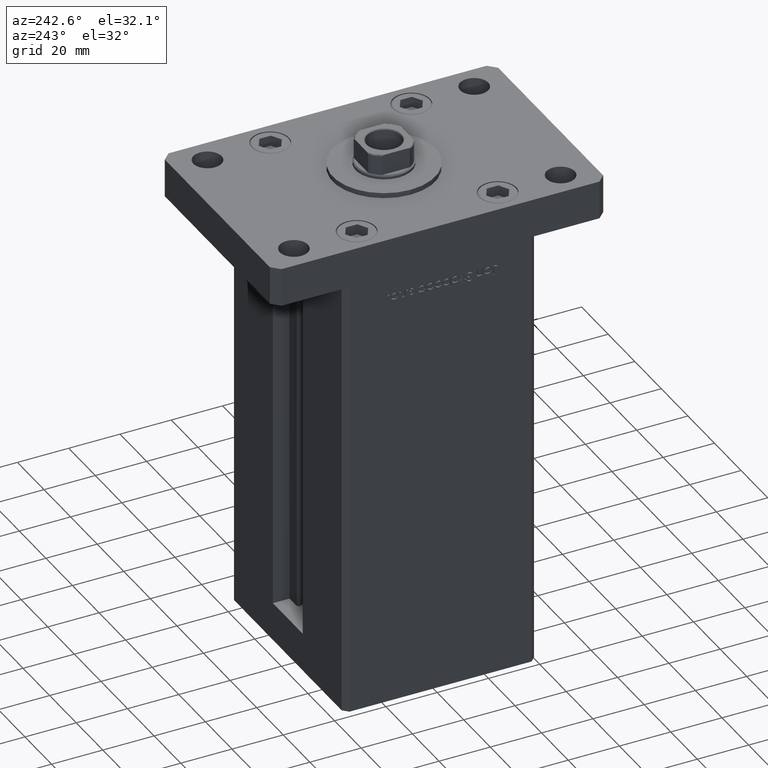
[diagram: clean part render]
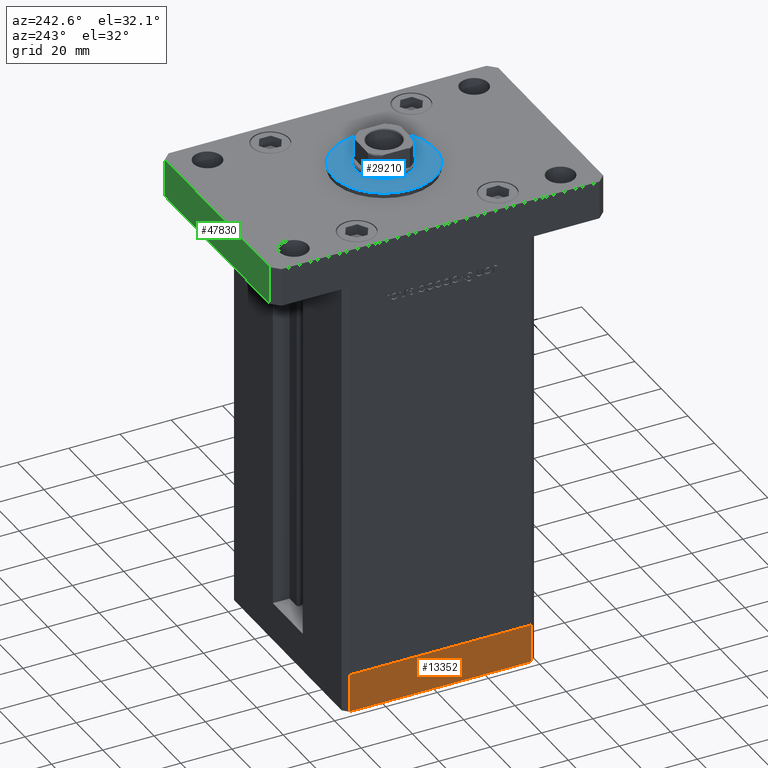
[diagram: same view with three faces highlighted in distinct colors, each labeled with its STEP entity id]
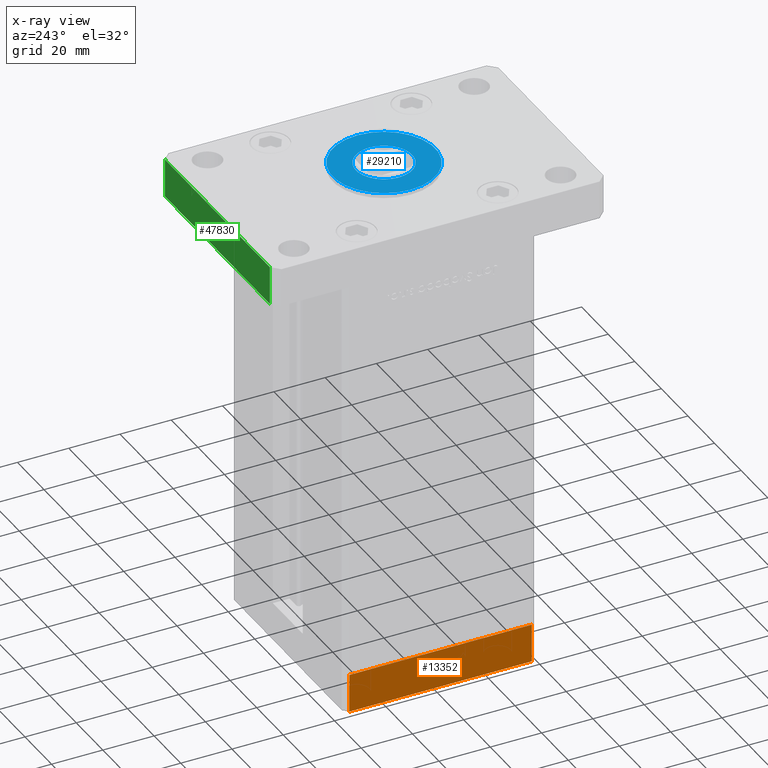
[diagram: x-ray of the same camera — body ghosted, the three highlighted faces saturated]
A machine part, auxiliary view with three faces highlighted in distinct colors.
The next image is the same camera in x-ray (body ghosted, the three faces saturated) — at least one of them is partly hidden behind the body in this view.
Their STEP definitions:

[orange] entity #13352 — the highlighted planar face has unit normal (-1, 0, 0).
#3212 = LINE ( 'NONE', #49063, #21973 ) ;
#3283 = ORIENTED_EDGE ( 'NONE', *, *, #46221, .T. ) ;
#4042 = VECTOR ( 'NONE', #24944, 1000.000000000000000 ) ;
#7184 = VECTOR ( 'NONE', #46546, 1000.000000000000000 ) ;
#8265 = EDGE_CURVE ( 'NONE', #48227, #43064, #31873, .T. ) ;
#8389 = CARTESIAN_POINT ( 'NONE',  ( 42.49999999999992895, 35.50000000000000000, -15.00000000000000000 ) ) ;
#10127 = FACE_OUTER_BOUND ( 'NONE', #30803, .T. ) ;
#13352 = ADVANCED_FACE ( 'NONE', ( #10127 ), #26676, .T. ) ;
#13427 = VERTEX_POINT ( 'NONE', #19889 ) ;
#14730 = DIRECTION ( 'NONE',  ( -1.172770800660376741E-15, 1.000000000000000000, 0.000000000000000000 ) ) ;
#15781 = VERTEX_POINT ( 'NONE', #17375 ) ;
#17375 = CARTESIAN_POINT ( 'NONE',  ( 42.49999999999992895, 35.50000000000000000, -15.00000000000000000 ) ) ;
#19889 = CARTESIAN_POINT ( 'NONE',  ( 42.49999999999992895, 35.50000000000000000, 0.000000000000000000 ) ) ;
#21241 = EDGE_CURVE ( 'NONE', #43064, #13427, #3212, .T. ) ;
#21973 = VECTOR ( 'NONE', #23569, 1000.000000000000000 ) ;
#23569 = DIRECTION ( 'NONE',  ( -1.172770800660376741E-15, 1.000000000000000000, 0.000000000000000000 ) ) ;
#24944 = DIRECTION ( 'NONE',  ( 0.000000000000000000, 0.000000000000000000, 1.000000000000000000 ) ) ;
#25049 = EDGE_CURVE ( 'NONE', #15781, #13427, #33352, .T. ) ;
#26676 = PLANE ( 'NONE',  #27915 ) ;
#26950 = DIRECTION ( 'NONE',  ( 1.000000000000000000, 1.172770800660376741E-15, -0.000000000000000000 ) ) ;
#27006 = LINE ( 'NONE', #34329, #7184 ) ;
#27915 = AXIS2_PLACEMENT_3D ( 'NONE', #31020, #26950, #14730 ) ;
#30767 = CARTESIAN_POINT ( 'NONE',  ( 42.50000000000000711, -35.50000000000000000, -15.00000000000000000 ) ) ;
#30803 = EDGE_LOOP ( 'NONE', ( #50216, #46509, #3283, #43823 ) ) ;
#31020 = CARTESIAN_POINT ( 'NONE',  ( 42.50000000000000711, -35.50000000000000000, -15.00000000000000000 ) ) ;
#31682 = CARTESIAN_POINT ( 'NONE',  ( 42.50000000000000711, -35.50000000000000000, 0.000000000000000000 ) ) ;
#31873 = LINE ( 'NONE', #35943, #52881 ) ;
#33352 = LINE ( 'NONE', #8389, #4042 ) ;
#34329 = CARTESIAN_POINT ( 'NONE',  ( 42.50000000000000711, -35.50000000000000000, -15.00000000000000000 ) ) ;
#35943 = CARTESIAN_POINT ( 'NONE',  ( 42.50000000000000711, -35.50000000000000000, -15.00000000000000000 ) ) ;
#43064 = VERTEX_POINT ( 'NONE', #31682 ) ;
#43823 = ORIENTED_EDGE ( 'NONE', *, *, #25049, .T. ) ;
#46221 = EDGE_CURVE ( 'NONE', #48227, #15781, #27006, .T. ) ;
#46509 = ORIENTED_EDGE ( 'NONE', *, *, #8265, .F. ) ;
#46546 = DIRECTION ( 'NONE',  ( -1.172770800660376741E-15, 1.000000000000000000, 0.000000000000000000 ) ) ;
#48227 = VERTEX_POINT ( 'NONE', #30767 ) ;
#49063 = CARTESIAN_POINT ( 'NONE',  ( 42.50000000000000711, -35.50000000000000000, 0.000000000000000000 ) ) ;
#50216 = ORIENTED_EDGE ( 'NONE', *, *, #21241, .F. ) ;
#52481 = DIRECTION ( 'NONE',  ( 0.000000000000000000, 0.000000000000000000, 1.000000000000000000 ) ) ;
#52881 = VECTOR ( 'NONE', #52481, 1000.000000000000000 ) ;

[blue] entity #29210 — the highlighted planar face has unit normal (0, 0, 1).
#1802 = DIRECTION ( 'NONE',  ( 0.000000000000000000, 0.000000000000000000, 1.000000000000000000 ) ) ;
#2295 = EDGE_LOOP ( 'NONE', ( #8809, #22034 ) ) ;
#4809 = FACE_BOUND ( 'NONE', #34746, .T. ) ;
#6035 = CIRCLE ( 'NONE', #14707, 20.00000000000000000 ) ;
#7291 = CARTESIAN_POINT ( 'NONE',  ( 0.000000000000000000, 0.000000000000000000, 17.00000000000000000 ) ) ;
#8809 = ORIENTED_EDGE ( 'NONE', *, *, #21207, .T. ) ;
#12688 = DIRECTION ( 'NONE',  ( 1.000000000000000000, 0.000000000000000000, -0.000000000000000000 ) ) ;
#13791 = DIRECTION ( 'NONE',  ( 1.000000000000000000, 0.000000000000000000, 0.000000000000000000 ) ) ;
#14707 = AXIS2_PLACEMENT_3D ( 'NONE', #43569, #1802, #26219 ) ;
#18267 = CARTESIAN_POINT ( 'NONE',  ( 11.00000000000000000, 0.000000000000000000, 17.00000000000000000 ) ) ;
#19181 = EDGE_CURVE ( 'NONE', #51137, #20488, #22908, .T. ) ;
#19403 = ORIENTED_EDGE ( 'NONE', *, *, #30174, .F. ) ;
#20488 = VERTEX_POINT ( 'NONE', #18267 ) ;
#21207 = EDGE_CURVE ( 'NONE', #27391, #51861, #37584, .T. ) ;
#22034 = ORIENTED_EDGE ( 'NONE', *, *, #38169, .T. ) ;
#22908 = CIRCLE ( 'NONE', #35872, 11.00000000000000000 ) ;
#23621 = CARTESIAN_POINT ( 'NONE',  ( -11.00000000000000000, 1.347111479062088405E-15, 17.00000000000000000 ) ) ;
#24956 = AXIS2_PLACEMENT_3D ( 'NONE', #50378, #49596, #12688 ) ;
#26219 = DIRECTION ( 'NONE',  ( 1.000000000000000000, 0.000000000000000000, 0.000000000000000000 ) ) ;
#27391 = VERTEX_POINT ( 'NONE', #47686 ) ;
#27626 = DIRECTION ( 'NONE',  ( 0.000000000000000000, 0.000000000000000000, 1.000000000000000000 ) ) ;
#29210 = ADVANCED_FACE ( 'NONE', ( #4809, #47314 ), #33833, .T. ) ;
#29227 = DIRECTION ( 'NONE',  ( 1.000000000000000000, 0.000000000000000000, 0.000000000000000000 ) ) ;
#30174 = EDGE_CURVE ( 'NONE', #20488, #51137, #38821, .T. ) ;
#33833 = PLANE ( 'NONE',  #24956 ) ;
#34411 = CARTESIAN_POINT ( 'NONE',  ( 0.000000000000000000, 0.000000000000000000, 17.00000000000000000 ) ) ;
#34466 = AXIS2_PLACEMENT_3D ( 'NONE', #41977, #50641, #29227 ) ;
#34746 = EDGE_LOOP ( 'NONE', ( #19403, #47738 ) ) ;
#35769 = DIRECTION ( 'NONE',  ( 1.000000000000000000, 0.000000000000000000, 0.000000000000000000 ) ) ;
#35872 = AXIS2_PLACEMENT_3D ( 'NONE', #34411, #50962, #13791 ) ;
#37584 = CIRCLE ( 'NONE', #38436, 20.00000000000000000 ) ;
#38169 = EDGE_CURVE ( 'NONE', #51861, #27391, #6035, .T. ) ;
#38436 = AXIS2_PLACEMENT_3D ( 'NONE', #7291, #27626, #35769 ) ;
#38821 = CIRCLE ( 'NONE', #34466, 11.00000000000000000 ) ;
#41977 = CARTESIAN_POINT ( 'NONE',  ( 0.000000000000000000, 0.000000000000000000, 17.00000000000000000 ) ) ;
#43569 = CARTESIAN_POINT ( 'NONE',  ( 0.000000000000000000, 0.000000000000000000, 17.00000000000000000 ) ) ;
#47314 = FACE_OUTER_BOUND ( 'NONE', #2295, .T. ) ;
#47686 = CARTESIAN_POINT ( 'NONE',  ( -20.00000000000000000, 0.000000000000000000, 17.00000000000000000 ) ) ;
#47738 = ORIENTED_EDGE ( 'NONE', *, *, #19181, .F. ) ;
#49596 = DIRECTION ( 'NONE',  ( 0.000000000000000000, 0.000000000000000000, 1.000000000000000000 ) ) ;
#50378 = CARTESIAN_POINT ( 'NONE',  ( 0.000000000000000000, 0.000000000000000000, 17.00000000000000000 ) ) ;
#50641 = DIRECTION ( 'NONE',  ( 0.000000000000000000, 0.000000000000000000, 1.000000000000000000 ) ) ;
#50962 = DIRECTION ( 'NONE',  ( 0.000000000000000000, 0.000000000000000000, 1.000000000000000000 ) ) ;
#51137 = VERTEX_POINT ( 'NONE', #23621 ) ;
#51861 = VERTEX_POINT ( 'NONE', #52838 ) ;
#52838 = CARTESIAN_POINT ( 'NONE',  ( 20.00000000000000000, 2.449293598294706513E-15, 17.00000000000000000 ) ) ;

[green] entity #47830 — the highlighted planar face has unit normal (0, -1, 0).
#80 = EDGE_CURVE ( 'NONE', #20932, #3876, #16738, .T. ) ;
#183 = DIRECTION ( 'NONE',  ( -0.000000000000000000, -0.000000000000000000, -1.000000000000000000 ) ) ;
#850 = EDGE_CURVE ( 'NONE', #45727, #35017, #34957, .T. ) ;
#3876 = VERTEX_POINT ( 'NONE', #51507 ) ;
#5324 = CARTESIAN_POINT ( 'NONE',  ( 39.50000000000002842, 65.00000000000002842, 0.000000000000000000 ) ) ;
#7057 = ORIENTED_EDGE ( 'NONE', *, *, #850, .F. ) ;
#9134 = DIRECTION ( 'NONE',  ( -1.000000000000000000, -3.513364001978340512E-16, 0.000000000000000000 ) ) ;
#9355 = ORIENTED_EDGE ( 'NONE', *, *, #12792, .F. ) ;
#11949 = PLANE ( 'NONE',  #48781 ) ;
#12785 = EDGE_CURVE ( 'NONE', #3876, #35017, #30558, .T. ) ;
#12792 = EDGE_CURVE ( 'NONE', #20932, #45727, #46837, .T. ) ;
#15942 = CARTESIAN_POINT ( 'NONE',  ( 39.50000000000002842, 65.00000000000002842, 15.00000000000000000 ) ) ;
#16738 = LINE ( 'NONE', #15942, #18109 ) ;
#18109 = VECTOR ( 'NONE', #183, 1000.000000000000000 ) ;
#20096 = DIRECTION ( 'NONE',  ( 3.513364001978341005E-16, -1.000000000000000000, 0.000000000000000000 ) ) ;
#20932 = VERTEX_POINT ( 'NONE', #36903 ) ;
#22758 = DIRECTION ( 'NONE',  ( -0.000000000000000000, -0.000000000000000000, -1.000000000000000000 ) ) ;
#24468 = CARTESIAN_POINT ( 'NONE',  ( -39.50000000000003553, 65.00000000000000000, 0.000000000000000000 ) ) ;
#25252 = CARTESIAN_POINT ( 'NONE',  ( -39.50000000000003553, 65.00000000000000000, 15.00000000000000000 ) ) ;
#27862 = EDGE_LOOP ( 'NONE', ( #38854, #7057, #9355, #52324 ) ) ;
#28527 = VECTOR ( 'NONE', #22758, 1000.000000000000000 ) ;
#29596 = VECTOR ( 'NONE', #42499, 1000.000000000000000 ) ;
#30558 = LINE ( 'NONE', #5324, #46056 ) ;
#34957 = LINE ( 'NONE', #51509, #28527 ) ;
#35017 = VERTEX_POINT ( 'NONE', #24468 ) ;
#36903 = CARTESIAN_POINT ( 'NONE',  ( 39.50000000000002842, 65.00000000000002842, 15.00000000000000000 ) ) ;
#38854 = ORIENTED_EDGE ( 'NONE', *, *, #12785, .T. ) ;
#41499 = CARTESIAN_POINT ( 'NONE',  ( 39.50000000000002842, 65.00000000000002842, 15.00000000000000000 ) ) ;
#42499 = DIRECTION ( 'NONE',  ( -1.000000000000000000, -3.513364001978340512E-16, 0.000000000000000000 ) ) ;
#45047 = DIRECTION ( 'NONE',  ( 1.000000000000000000, 3.513364001978341005E-16, 0.000000000000000000 ) ) ;
#45727 = VERTEX_POINT ( 'NONE', #25252 ) ;
#45833 = FACE_OUTER_BOUND ( 'NONE', #27862, .T. ) ;
#46032 = CARTESIAN_POINT ( 'NONE',  ( 39.50000000000002842, 65.00000000000002842, 15.00000000000000000 ) ) ;
#46056 = VECTOR ( 'NONE', #9134, 1000.000000000000000 ) ;
#46837 = LINE ( 'NONE', #46032, #29596 ) ;
#47830 = ADVANCED_FACE ( 'NONE', ( #45833 ), #11949, .F. ) ;
#48781 = AXIS2_PLACEMENT_3D ( 'NONE', #41499, #20096, #45047 ) ;
#51507 = CARTESIAN_POINT ( 'NONE',  ( 39.50000000000002842, 65.00000000000002842, 0.000000000000000000 ) ) ;
#51509 = CARTESIAN_POINT ( 'NONE',  ( -39.50000000000003553, 65.00000000000000000, 15.00000000000000000 ) ) ;
#52324 = ORIENTED_EDGE ( 'NONE', *, *, #80, .T. ) ;